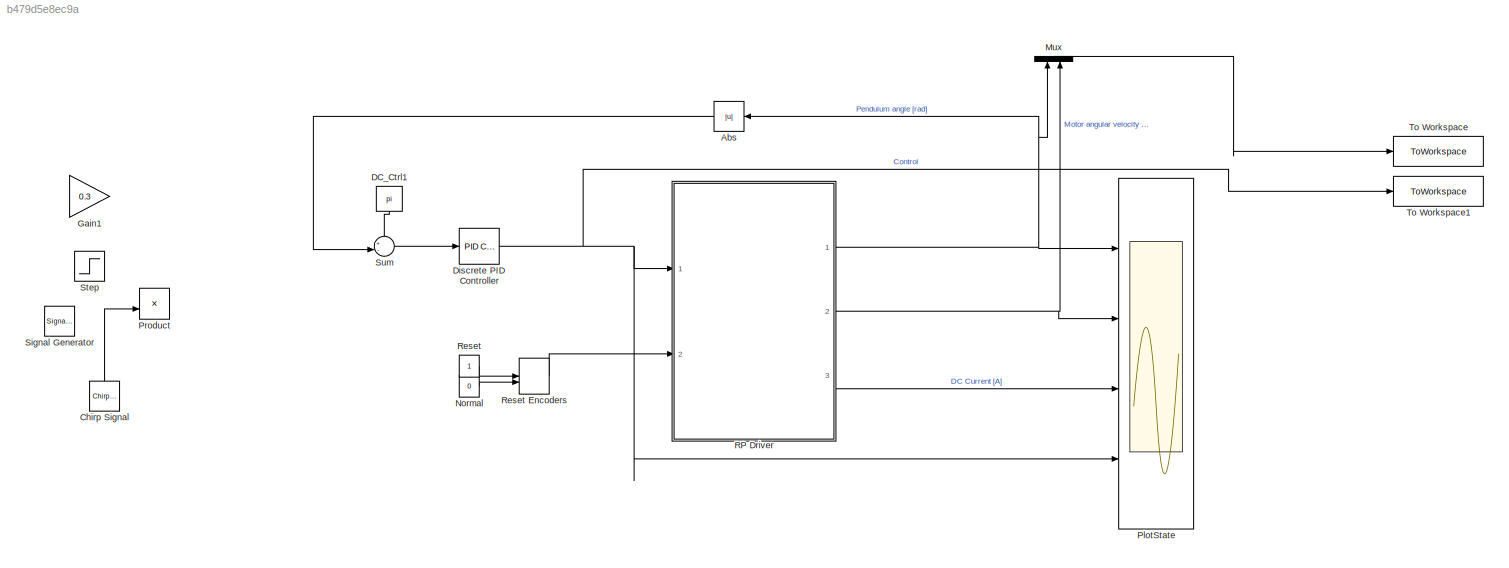
MODEL slx_b479d5e8ec9a
KIND model
CONFIG AbsTol = auto
CONFIG EnableMultiTasking = on
CONFIG FixedStep = h
CONFIG InitFcn = hwinit
CONFIG MaxStep = auto
CONFIG MinStep = auto
CONFIG PreLoadFcn = warning('off','MATLAB:dispatcher:InexactMatch');\n\n
CONFIG RelTol = 1e-3
CONFIG SampleTimeConstraint = Unconstrained
CONFIG SolverName = FixedStepDiscrete
CONFIG StartTime = 0.0
CONFIG StopTime = 60
BLOCK [Abs] Abs
  NameLocation = top
  SaturateOnIntegerOverflow = off
BLOCK [Reference] Chirp Signal  REF=simulink/Sources/Chirp Signal
  NameLocation = right
  Ports = [0, 1]
  SourceBlock = simulink/Sources/Chirp Signal
  SourceProductBaseCode = SL
  SourceType = chirp
BLOCK [Constant] DC_Ctrl1
  NameLocation = left
  Value = pi
BLOCK [Reference] Discrete PID Controller  REF=slpidlib/PID Controller
  Ports = [1, 1]
  SourceBlock = slpidlib/PID Controller
  SourceProductBaseCode = SL
  SourceType = PID 1dof
BLOCK [Gain] Gain1
  Gain = 0.3
BLOCK [Mux] Mux
  DisplayOption = bar
  Inputs = 2
  NameLocation = right
  Ports = [2, 1]
BLOCK [Constant] Normal
  Value = 0
BLOCK [Scope] PlotState
  Floating = off
  NumInputPorts = 4
  Ports = [4]
  ScopeSpecificationString = Simulink.scopes.TimeScopeBlockCfg('CurrentConfiguration', extmgr.ConfigurationSet(extmgr.Configuration('Core','General UI',true),extmgr.Configuration('Core','Source UI',true),extmgr.Configuration('Sources','WiredSimulink',true,'DataLoggingVariableName','StateData','DataLoggingSaveFormat','StructureWithTime','DataLoggingMaxPoints','12000','DataLoggingDecimation','1','DataLoggingDecimateData',true),...<+3954ch>
BLOCK [Product] Product
  Ports = [2, 1]
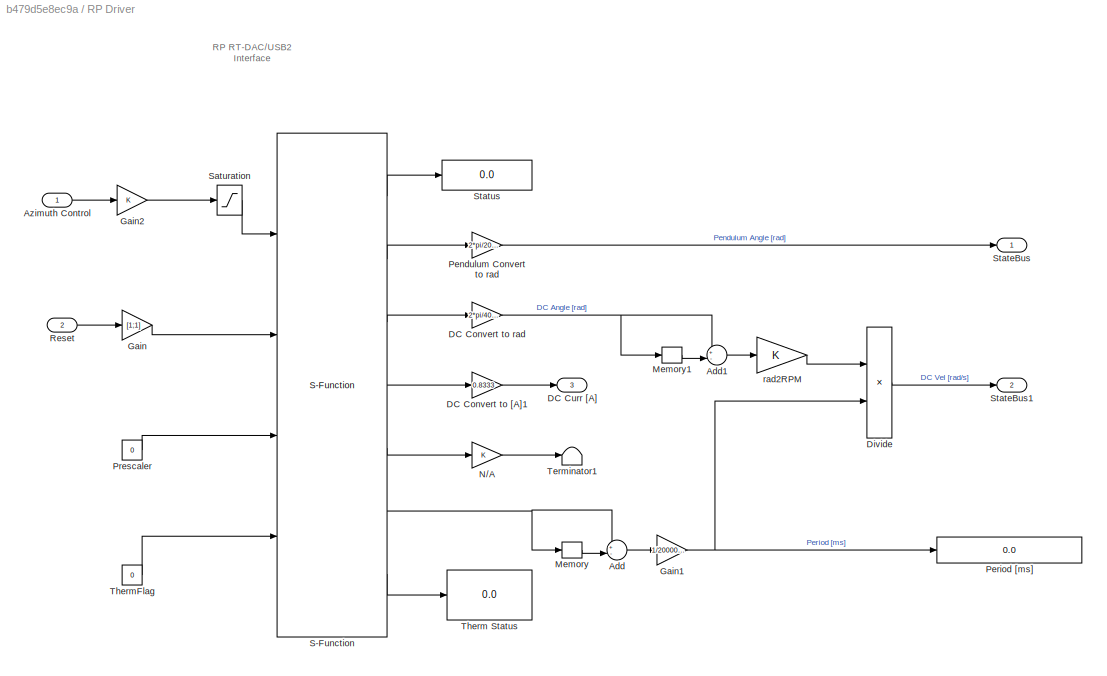
BLOCK [SubSystem] RP Driver
  Ports = [2, 3]
  RequestExecContextInheritance = off
BLOCK [Sum] RP Driver/Add
  Inputs = +-|
  Ports = [2, 1]
BLOCK [Sum] RP Driver/Add1
  Inputs = +-|
  Ports = [2, 1]
BLOCK [Inport] RP Driver/Azimuth Control
BLOCK [Gain] RP Driver/DC Convert to [A]1
  Gain = 0.8333
  OutDataTypeStr = Inherit: Same as input
  ParamDataTypeStr = Inherit: Same as input
  SaturateOnIntegerOverflow = on
BLOCK [Gain] RP Driver/DC Convert to rad
  Gain = 2*pi/4096
  OutDataTypeStr = Inherit: Same as input
  ParamDataTypeStr = Inherit: Same as input
  SaturateOnIntegerOverflow = on
BLOCK [Outport] RP Driver/DC Curr [A]
  Port = 3
  VectorParamsAs1DForOutWhenUnconnected = off
BLOCK [Product] RP Driver/Divide
  Inputs = */
  Ports = [2, 1]
BLOCK [Gain] RP Driver/Gain
  Gain = [1;1]
BLOCK [Gain] RP Driver/Gain1
  Gain = 1/20000000
BLOCK [Gain] RP Driver/Gain2
BLOCK [Memory] RP Driver/Memory
  NameLocation = top
BLOCK [Memory] RP Driver/Memory1
  NameLocation = top
BLOCK [Gain] RP Driver/N//A
  OutDataTypeStr = Inherit: Same as input
  ParamDataTypeStr = Inherit: Same as input
  SaturateOnIntegerOverflow = on
BLOCK [Gain] RP Driver/Pendulum Convert to rad
  Gain = 2*pi/20000
  OutDataTypeStr = Inherit: Same as input
  ParamDataTypeStr = Inherit: Same as input
  SaturateOnIntegerOverflow = on
BLOCK [Display] RP Driver/Period [ms]
  Decimation = 1
  Format = long
  Ports = [1]
BLOCK [Constant] RP Driver/Prescaler
  Value = 0
BLOCK [Inport] RP Driver/Reset
  Port = 2
BLOCK [S-Function] RP Driver/S-Function
  EnableBusSupport = off
  FunctionName = rtdacusb2_rpend_dd
  Parameters = 1, h
  Ports = [4, 7]
  SFcnIsStateOwnerBlock = off
  SFunctionDeploymentMode = off
BLOCK [Saturate] RP Driver/Saturation
  LowerLimit = -1
  UpperLimit = 1
BLOCK [Outport] RP Driver/StateBus
  VectorParamsAs1DForOutWhenUnconnected = off
BLOCK [Outport] RP Driver/StateBus1
  Port = 2
  VectorParamsAs1DForOutWhenUnconnected = off
BLOCK [Display] RP Driver/Status
  Decimation = 1
  Ports = [1]
BLOCK [Terminator] RP Driver/Terminator1
BLOCK [Display] RP Driver/Therm Status
  Decimation = 1
  Ports = [1]
BLOCK [Constant] RP Driver/ThermFlag
  Value = 0
BLOCK [Gain] RP Driver/rad2RPM
  OutDataTypeStr = Inherit: Same as input
  ParamDataTypeStr = Inherit: Same as input
  SaturateOnIntegerOverflow = on
BLOCK [Constant] Reset
  NameLocation = top
BLOCK [ManualSwitch] Reset Encoders
  CurrentSetting = 0
BLOCK [SignalGenerator] Signal Generator
  Frequency = 0.5
  Ports = [0, 1]
BLOCK [Step] Step
  After = 0
  Before = 1
  SampleTime = h
  Time = 2
BLOCK [Sum] Sum
  Inputs = +-|
  Ports = [2, 1]
BLOCK [ToWorkspace] To Workspace
  FixptAsFi = on
  MaxDataPoints = inf
  Ports = [1]
  SampleTime = h
  Save2DSignal = 2-D array (concatenate along first dimension)
  SaveFormat = Structure With Time
  VariableName = Meas
BLOCK [ToWorkspace] To Workspace1
  FixptAsFi = on
  MaxDataPoints = inf
  Ports = [1]
  SampleTime = h
  Save2DSignal = 2-D array (concatenate along first dimension)
  SaveFormat = Structure With Time
  VariableName = CtrlIn
ANNOTATION RP Driver: RP RT-DAC/USB2 Interface
LINE Abs:1 -> Sum:2
LINE Chirp Signal:1 -> Product:2
LINE DC_Ctrl1:1 -> Sum:1
NET Discrete PID Controller:1 -> PlotState:4, RP Driver:1, To Workspace1:1
LINE Mux:1 -> To Workspace:1
LINE Normal:1 -> Reset Encoders:2
LINE RP Driver/Add1:1 -> RP Driver/rad2RPM:1
LINE RP Driver/Add:1 -> RP Driver/Gain1:1
LINE RP Driver/Azimuth Control:1 -> RP Driver/Gain2:1
LINE RP Driver/DC Convert to [A]1:1 -> RP Driver/DC Curr [A]:1
NET RP Driver/DC Convert to rad:1 -> RP Driver/Add1:1, RP Driver/Memory1:1
LINE RP Driver/Divide:1 -> RP Driver/StateBus1:1
NET RP Driver/Gain1:1 -> RP Driver/Divide:2, RP Driver/Period [ms]:1
LINE RP Driver/Gain2:1 -> RP Driver/Saturation:1
LINE RP Driver/Gain:1 -> RP Driver/S-Function:2
LINE RP Driver/Memory1:1 -> RP Driver/Add1:2
LINE RP Driver/Memory:1 -> RP Driver/Add:2
LINE RP Driver/N//A:1 -> RP Driver/Terminator1:1
LINE RP Driver/Pendulum Convert to rad:1 -> RP Driver/StateBus:1
LINE RP Driver/Prescaler:1 -> RP Driver/S-Function:3
LINE RP Driver/Reset:1 -> RP Driver/Gain:1
LINE RP Driver/S-Function:1 -> RP Driver/Status:1
LINE RP Driver/S-Function:2 -> RP Driver/Pendulum Convert to rad:1
LINE RP Driver/S-Function:3 -> RP Driver/DC Convert to rad:1
LINE RP Driver/S-Function:4 -> RP Driver/DC Convert to [A]1:1
LINE RP Driver/S-Function:5 -> RP Driver/N//A:1
NET RP Driver/S-Function:6 -> RP Driver/Add:1, RP Driver/Memory:1
LINE RP Driver/S-Function:7 -> RP Driver/Therm Status:1
LINE RP Driver/Saturation:1 -> RP Driver/S-Function:1
LINE RP Driver/ThermFlag:1 -> RP Driver/S-Function:4
LINE RP Driver/rad2RPM:1 -> RP Driver/Divide:1
NET RP Driver:1 -> Abs:1, Mux:1, PlotState:1
NET RP Driver:2 -> Mux:2, PlotState:2
LINE RP Driver:3 -> PlotState:3
LINE Reset Encoders:1 -> RP Driver:2
LINE Reset:1 -> Reset Encoders:1
LINE Sum:1 -> Discrete PID Controller:1
note: NET lines group one-source signal fan-out (src -> all destinations, sorted); 1:1 wires keep LINE
